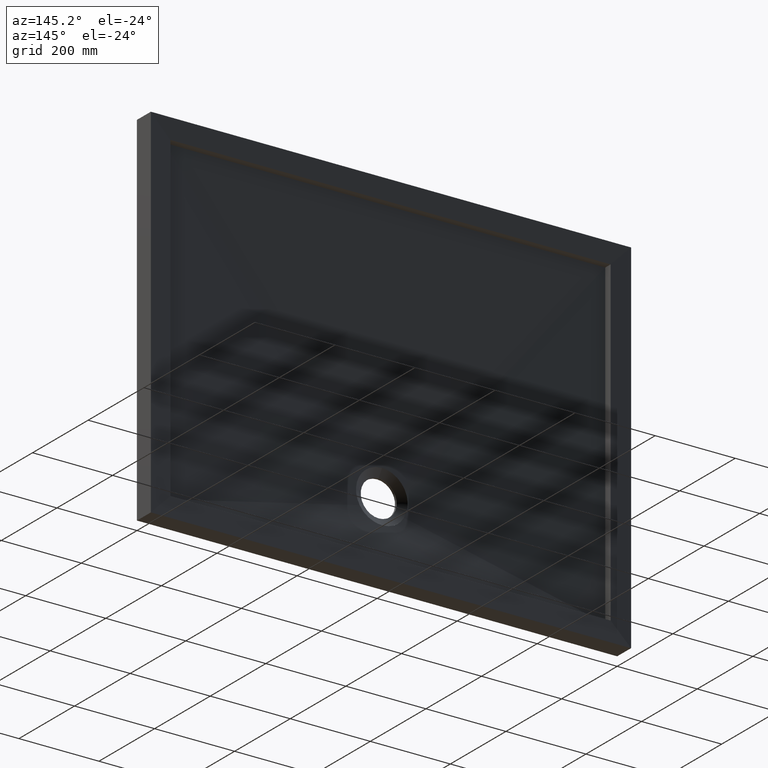
[diagram: clean part render]
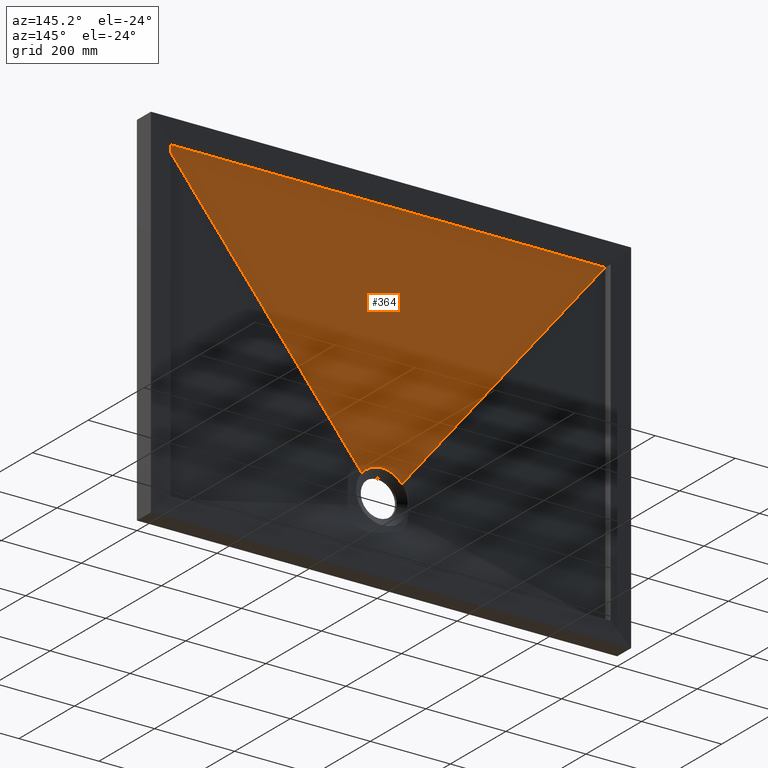
[diagram: same view with one face highlighted and labeled with its STEP entity id]
A machine part, auxiliary view. The second image highlights one B-rep face of the part: STEP entity #364.
In plain terms, the highlighted face is a freeform B-spline surface patch.
Its self-contained STEP definition (entity closure, byte-faithful):
#3 = CARTESIAN_POINT ( 'NONE',  ( 527.0833333333332600, 29.00000000000000000, 399.9999999999999400 ) ) ;
#8 = VERTEX_POINT ( 'NONE', #698 ) ;
#11 = CARTESIAN_POINT ( 'NONE',  ( 458.3333333333329200, 29.00000000000000000, 399.9999999999999400 ) ) ;
#13 = VERTEX_POINT ( 'NONE', #29 ) ;
#14 = CARTESIAN_POINT ( 'NONE',  ( 550.0000000000000000, 29.00000000000000000, 399.9999999999999400 ) ) ;
#15 = CARTESIAN_POINT ( 'NONE',  ( 91.66666666666574800, 28.99999999999999600, 399.9999999999998900 ) ) ;
#17 = CARTESIAN_POINT ( 'NONE',  ( -10.71637495685289400, 16.99999999999999600, -200.0931379184680200 ) ) ;
#18 = CARTESIAN_POINT ( 'NONE',  ( -28.74509755400799800, 17.24935912286239400, -192.2645614809004500 ) ) ;
#29 = CARTESIAN_POINT ( 'NONE',  ( -49.97414197186390800, 17.20588167449278000, -209.3659679230751200 ) ) ;
#32 = B_SPLINE_SURFACE_WITH_KNOTS ( 'NONE', 3, 1, ( 
 ( #155, #736 ),
 ( #3, #451 ),
 ( #328, #762 ),
 ( #11, #666 ),
 ( #136, #672 ),
 ( #778, #434 ),
 ( #125, #771 ),
 ( #319, #891 ),
 ( #835, #978 ),
 ( #991, #994 ),
 ( #1011, #291 ),
 ( #171, #638 ),
 ( #774, #731 ),
 ( #359, #956 ),
 ( #15, #543 ),
 ( #122, #167 ),
 ( #67, #1048 ),
 ( #1037, #954 ),
 ( #681, #164 ),
 ( #766, #1047 ),
 ( #682, #17 ),
 ( #239, #272 ),
 ( #711, #857 ),
 ( #629, #277 ),
 ( #795, #858 ),
 ( #869, #871 ),
 ( #894, #895 ),
 ( #900, #921 ),
 ( #930, #931 ),
 ( #813, #839 ),
 ( #831, #904 ),
 ( #350, #436 ),
 ( #1018, #819 ),
 ( #897, #407 ) ),
 .UNSPECIFIED., .F., .F., .F.,
 ( 4, 2, 2, 2, 2, 2, 2, 2, 2, 2, 2, 2, 2, 2, 2, 2, 4 ),
 ( 2, 2 ),
 ( 0.0000000000000000000, 0.06249999999999997200, 0.1249999999999999400, 0.1874999999999999200, 0.2499999999999998900, 0.3124999999999998900, 0.3749999999999998300, 0.4374999999999997800, 0.5000000000000000000, 0.5624999999999997800, 0.6249999999999997800, 0.6874999999999996700, 0.7499999999999996700, 0.8124999999999997800, 0.8749999999999997800, 0.9374999999999998900, 1.000000000000000000 ),
 ( 0.0000000000000000000, 1.000000000000000000 ),
 .UNSPECIFIED. ) ;
#34 = CARTESIAN_POINT ( 'NONE',  ( 49.97414197186400000, 17.20588167449277600, -209.3659679230752000 ) ) ;
#35 = CARTESIAN_POINT ( 'NONE',  ( -9.479265876766813600, 17.26855272555655700, -186.1712523424320400 ) ) ;
#39 = CARTESIAN_POINT ( 'NONE',  ( -183.3333333333332300, 28.99999999999991500, 399.9999999999999400 ) ) ;
#47 = CARTESIAN_POINT ( 'NONE',  ( 10.11580810493795300, 17.26819723771773200, -186.2780853966670200 ) ) ;
#67 = CARTESIAN_POINT ( 'NONE',  ( 22.91666666666557400, 29.00000000000000000, 399.9999999999998300 ) ) ;
#105 = EDGE_CURVE ( 'NONE', #8, #701, #634, .T. ) ;
#122 = CARTESIAN_POINT ( 'NONE',  ( 45.83333333333232700, 28.99999999999999600, 399.9999999999998900 ) ) ;
#125 = CARTESIAN_POINT ( 'NONE',  ( 366.6666666666660600, 28.99999999999999600, 399.9999999999999400 ) ) ;
#130 = CARTESIAN_POINT ( 'NONE',  ( 1.308533197277669000E-011, 17.27088643648059500, -185.4782520456767300 ) ) ;
#132 = CARTESIAN_POINT ( 'NONE',  ( -549.9999999999997700, 28.99999999999991500, 399.9999999999998300 ) ) ;
#136 = CARTESIAN_POINT ( 'NONE',  ( 435.4166666666661700, 28.99999999999999600, 399.9999999999999400 ) ) ;
#139 = CARTESIAN_POINT ( 'NONE',  ( -13.01912884585453700, 17.26645738684763000, -186.8017699432756400 ) ) ;
#149 = CARTESIAN_POINT ( 'NONE',  ( 41.64220630097260300, 17.22604673988906000, -200.7597484680775300 ) ) ;
#150 = EDGE_LOOP ( 'NONE', ( #750, #184, #671, #707, #287 ) ) ;
#151 = CARTESIAN_POINT ( 'NONE',  ( -46.85455444333030100, 17.21402276256696600, -205.7205750830067600 ) ) ;
#155 = CARTESIAN_POINT ( 'NONE',  ( 550.0000000000000000, 29.00000000000000000, 399.9999999999999400 ) ) ;
#156 = CARTESIAN_POINT ( 'NONE',  ( -41.69140537829583300, 17.22594107165013000, -200.8014092277519500 ) ) ;
#164 = CARTESIAN_POINT ( 'NONE',  ( -4.328338544971771300, 17.00000000000000000, -199.1383096882124400 ) ) ;
#165 = EDGE_CURVE ( 'NONE', #913, #13, #254, .T. ) ;
#167 = CARTESIAN_POINT ( 'NONE',  ( 4.328338544971991600, 16.99999999999999600, -199.1383096882124200 ) ) ;
#169 = CARTESIAN_POINT ( 'NONE',  ( 4.755102677040433400, 17.27044059797810500, -185.6096712859689100 ) ) ;
#171 = CARTESIAN_POINT ( 'NONE',  ( 183.3333333333324300, 28.99999999999999600, 399.9999999999998900 ) ) ;
#184 = ORIENTED_EDGE ( 'NONE', *, *, #165, .F. ) ;
#198 = CARTESIAN_POINT ( 'NONE',  ( -2.377902013855495200, 17.27088643648059800, -185.4782520456763000 ) ) ;
#201 = LINE ( 'NONE', #345, #401 ) ;
#208 = CARTESIAN_POINT ( 'NONE',  ( 13.05198255440064900, 17.26643399123459900, -186.8088639105866900 ) ) ;
#239 = CARTESIAN_POINT ( 'NONE',  ( -160.4166666666673700, 28.99999999999999600, 399.9999999999997700 ) ) ;
#240 = CARTESIAN_POINT ( 'NONE',  ( 25.50098702321349400, 17.25400128221974700, -190.7147068977659500 ) ) ;
#254 = LINE ( 'NONE', #848, #573 ) ;
#266 = CARTESIAN_POINT ( 'NONE',  ( 48.43652530376482400, 17.20996178663450800, -207.5170979754244300 ) ) ;
#272 = CARTESIAN_POINT ( 'NONE',  ( -14.83989249147562400, 16.99999999999999600, -201.1603320457400300 ) ) ;
#277 = CARTESIAN_POINT ( 'NONE',  ( -20.73369788839070800, 17.00000000000001100, -203.3580255928997400 ) ) ;
#284 = CARTESIAN_POINT ( 'NONE',  ( 11.88329816599599000, 17.26720206336586500, -186.5772284193081700 ) ) ;
#287 = ORIENTED_EDGE ( 'NONE', *, *, #105, .F. ) ;
#291 = CARTESIAN_POINT ( 'NONE',  ( 20.73369788839092800, 17.00000000000000400, -203.3580255928996500 ) ) ;
#293 = CARTESIAN_POINT ( 'NONE',  ( 18.81011411466350600, 17.26172290997689600, -188.2519243660882200 ) ) ;
#304 = CARTESIAN_POINT ( 'NONE',  ( 23.29581390036876000, 17.25680004765063600, -189.8098818146839300 ) ) ;
#306 = CARTESIAN_POINT ( 'NONE',  ( -16.53957020356080000, 17.26383226843792000, -187.6003708646430000 ) ) ;
#319 = CARTESIAN_POINT ( 'NONE',  ( 320.8333333333326300, 28.99999999999999600, 399.9999999999998900 ) ) ;
#326 = CARTESIAN_POINT ( 'NONE',  ( 43.42904343714401700, 17.22210454831827100, -202.3362233863141700 ) ) ;
#328 = CARTESIAN_POINT ( 'NONE',  ( 504.1666666666664000, 29.00000000000000000, 399.9999999999999400 ) ) ;
#329 = CARTESIAN_POINT ( 'NONE',  ( 183.3333333333334600, 28.99999999999991500, 399.9999999999999400 ) ) ;
#345 = CARTESIAN_POINT ( 'NONE',  ( 295.6227701497314200, 23.00000000000000000, 89.99837829071368800 ) ) ;
#350 = CARTESIAN_POINT ( 'NONE',  ( -504.1666666666666300, 28.99999999999999600, 399.9999999999997700 ) ) ;
#359 = CARTESIAN_POINT ( 'NONE',  ( 114.5833333333324200, 28.99999999999999600, 399.9999999999998900 ) ) ;
#360 = CARTESIAN_POINT ( 'NONE',  ( 7.738809808238187300, 17.26931446588669100, -185.9439619672132300 ) ) ;
#364 = ADVANCED_FACE ( 'NONE', ( #903 ), #32, .F. ) ;
#365 = CARTESIAN_POINT ( 'NONE',  ( -43.47049953714609700, 17.22200950406750400, -202.3752690799245800 ) ) ;
#401 = VECTOR ( 'NONE', #585, 1000.000000000000000 ) ;
#407 = CARTESIAN_POINT ( 'NONE',  ( -41.24554029946264000, 17.00000000000000000, -220.0032434185725900 ) ) ;
#414 = CARTESIAN_POINT ( 'NONE',  ( 35.97381285597575800, 17.23738743563143700, -196.4545841741629000 ) ) ;
#434 = CARTESIAN_POINT ( 'NONE',  ( 32.58897540191802000, 17.00000000000000400, -210.7249962300863000 ) ) ;
#436 = CARTESIAN_POINT ( 'NONE',  ( -39.12739289966396000, 17.00000000000000700, -217.2386246830978100 ) ) ;
#441 = CARTESIAN_POINT ( 'NONE',  ( -31.90342971921919400, 17.24441976254814100, -193.9576633006189200 ) ) ;
#442 = EDGE_CURVE ( 'NONE', #846, #701, #201, .T. ) ;
#446 = CARTESIAN_POINT ( 'NONE',  ( -29.80627085702969500, 17.24775397077884900, -192.8081886930395100 ) ) ;
#451 = CARTESIAN_POINT ( 'NONE',  ( 40.23472948865203600, 17.00000000000000000, -218.6133785537077500 ) ) ;
#455 = CARTESIAN_POINT ( 'NONE',  ( 49.21792610277045600, 17.20792244962978400, -208.4303259009961900 ) ) ;
#489 = CARTESIAN_POINT ( 'NONE',  ( 9.524232781394728100, 17.26850289120658000, -186.1864274016765300 ) ) ;
#496 = EDGE_CURVE ( 'NONE', #13, #8, #905, .T. ) ;
#498 = CARTESIAN_POINT ( 'NONE',  ( 45.99015019378266800, 17.21606421814891500, -204.8651227935335700 ) ) ;
#521 = CARTESIAN_POINT ( 'NONE',  ( 49.97414197186400000, 17.20588167449277600, -209.3659679230752000 ) ) ;
#543 = CARTESIAN_POINT ( 'NONE',  ( 8.604488429612132400, 17.00000000000000000, -199.6849045037500600 ) ) ;
#554 = CARTESIAN_POINT ( 'NONE',  ( -8.298021701742705100, 17.26910503703015800, -186.0061169859500300 ) ) ;
#572 = CARTESIAN_POINT ( 'NONE',  ( -549.9999999999997700, 28.99999999999991500, 399.9999999999998300 ) ) ;
#573 = VECTOR ( 'NONE', #800, 1000.000000000000000 ) ;
#585 = DIRECTION ( 'NONE',  ( -0.6342708425847947100, -0.01496055703471900100, -0.7729661570728600900 ) ) ;
#587 = CARTESIAN_POINT ( 'NONE',  ( -23.32762546981613000, 17.25676185936708500, -189.8221195568587200 ) ) ;
#592 = CARTESIAN_POINT ( 'NONE',  ( 30.34565741263827500, 17.24689680394788400, -193.1036541951341400 ) ) ;
#629 = CARTESIAN_POINT ( 'NONE',  ( -229.1666666666672000, 28.99999999999999600, 399.9999999999997700 ) ) ;
#634 = B_SPLINE_CURVE_WITH_KNOTS ( 'NONE', 3,
 ( #648, #776, #169, #360, #790, #489, #47, #284, #208, #706, #293, #304, #240, #923, #1041, #1028, #592, #868, #984, #414, #705, #149, #326, #498, #792, #266, #455, #521 ),
 .UNSPECIFIED., .F., .F.,
 ( 4, 2, 2, 2, 2, 2, 2, 2, 2, 2, 2, 2, 2, 4 ),
 ( 0.05700798991850635600, 0.06412374774518135600, 0.06590268720185010800, 0.06768162665851885900, 0.07123950557185637600, 0.07835526339853138300, 0.08547102122520640300, 0.08724996068187515500, 0.08902890013854389300, 0.09258677905188142400, 0.09970253687855645800, 0.1068182947052314900, 0.1103761736185690500, 0.1139340525319066000 ),
 .UNSPECIFIED. ) ;
#638 = CARTESIAN_POINT ( 'NONE',  ( 16.85142588641620500, 17.00000000000000400, -201.8192003977280800 ) ) ;
#641 = CARTESIAN_POINT ( 'NONE',  ( -18.83523870476782100, 17.26169857201121600, -188.2594764642424000 ) ) ;
#648 = CARTESIAN_POINT ( 'NONE',  ( 1.308533197277669000E-011, 17.27088643648059500, -185.4782520456767300 ) ) ;
#666 = CARTESIAN_POINT ( 'NONE',  ( 36.71241751153949200, 17.00000000000000000, -214.5534347469599100 ) ) ;
#670 = CARTESIAN_POINT ( 'NONE',  ( -49.97414197186390800, 17.20588167449278000, -209.3659679230751200 ) ) ;
#671 = ORIENTED_EDGE ( 'NONE', *, *, #1029, .F. ) ;
#672 = CARTESIAN_POINT ( 'NONE',  ( 35.40471239405092500, 17.00000000000000400, -213.2430471996372900 ) ) ;
#679 = CARTESIAN_POINT ( 'NONE',  ( -11.83861441664453400, 17.26723002409676900, -186.5688002265456500 ) ) ;
#681 = CARTESIAN_POINT ( 'NONE',  ( -45.83333333333432300, 29.00000000000000000, 399.9999999999998900 ) ) ;
#682 = CARTESIAN_POINT ( 'NONE',  ( -114.5833333333341800, 28.99999999999999600, 399.9999999999998300 ) ) ;
#691 = CARTESIAN_POINT ( 'NONE',  ( -36.00591176405897900, 17.23733064565292100, -196.4749386924746100 ) ) ;
#698 = CARTESIAN_POINT ( 'NONE',  ( 1.308533197277669000E-011, 17.27088643648059500, -185.4782520456767300 ) ) ;
#701 = VERTEX_POINT ( 'NONE', #34 ) ;
#705 = CARTESIAN_POINT ( 'NONE',  ( 37.91459878905596500, 17.23368966405640300, -197.8189181469090000 ) ) ;
#706 = CARTESIAN_POINT ( 'NONE',  ( 16.52957606586819800, 17.26383748873981700, -187.5988300016432800 ) ) ;
#707 = ORIENTED_EDGE ( 'NONE', *, *, #442, .T. ) ;
#711 = CARTESIAN_POINT ( 'NONE',  ( -183.3333333333339700, 28.99999999999999600, 399.9999999999997700 ) ) ;
#731 = CARTESIAN_POINT ( 'NONE',  ( 14.83989249147584600, 16.99999999999999600, -201.1603320457400900 ) ) ;
#736 = CARTESIAN_POINT ( 'NONE',  ( 41.24554029946286000, 17.00000000000000000, -220.0032434185725900 ) ) ;
#750 = ORIENTED_EDGE ( 'NONE', *, *, #496, .F. ) ;
#751 = CARTESIAN_POINT ( 'NONE',  ( -4.749651902815630300, 17.27043933324653900, -185.6100744589150200 ) ) ;
#762 = CARTESIAN_POINT ( 'NONE',  ( 39.12739289966417300, 17.00000000000000700, -217.2386246830978100 ) ) ;
#766 = CARTESIAN_POINT ( 'NONE',  ( -91.66666666666753800, 28.99999999999999600, 399.9999999999998300 ) ) ;
#771 = CARTESIAN_POINT ( 'NONE',  ( 31.08088943543345200, 17.00000000000000000, -209.5174096379093100 ) ) ;
#774 = CARTESIAN_POINT ( 'NONE',  ( 160.4166666666657800, 28.99999999999999600, 399.9999999999998900 ) ) ;
#776 = CARTESIAN_POINT ( 'NONE',  ( 2.374484684063844500, 17.27088643648059500, -185.4782520456772100 ) ) ;
#778 = CARTESIAN_POINT ( 'NONE',  ( 389.5833333333328000, 28.99999999999999600, 399.9999999999999400 ) ) ;
#790 = CARTESIAN_POINT ( 'NONE',  ( 8.336201833353658900, 17.26906127915454200, -186.0194123580552600 ) ) ;
#792 = CARTESIAN_POINT ( 'NONE',  ( 46.82350974173532200, 17.21403062954545500, -205.7353315572819400 ) ) ;
#795 = CARTESIAN_POINT ( 'NONE',  ( -252.0833333333338300, 28.99999999999999600, 399.9999999999997700 ) ) ;
#798 = CARTESIAN_POINT ( 'NONE',  ( -32.94059508990726200, 17.24268753882971700, -194.5642493223091400 ) ) ;
#800 = DIRECTION ( 'NONE',  ( 0.6342708425847947100, -0.01496055703471900100, -0.7729661570728600900 ) ) ;
#813 = CARTESIAN_POINT ( 'NONE',  ( -435.4166666666668000, 28.99999999999999600, 399.9999999999997700 ) ) ;
#819 = CARTESIAN_POINT ( 'NONE',  ( -40.23472948865183000, 17.00000000000000400, -218.6133785537077800 ) ) ;
#831 = CARTESIAN_POINT ( 'NONE',  ( -458.3333333333334300, 28.99999999999999600, 399.9999999999997700 ) ) ;
#835 = CARTESIAN_POINT ( 'NONE',  ( 297.9166666666659500, 28.99999999999999600, 399.9999999999998900 ) ) ;
#839 = CARTESIAN_POINT ( 'NONE',  ( -35.40471239405070500, 17.00000000000000700, -213.2430471996373500 ) ) ;
#846 = VERTEX_POINT ( 'NONE', #854 ) ;
#848 = CARTESIAN_POINT ( 'NONE',  ( -295.6227701497312000, 23.00000000000000000, 89.99837829071361700 ) ) ;
#854 = CARTESIAN_POINT ( 'NONE',  ( 550.0000000000000000, 29.00000000000000000, 399.9999999999999400 ) ) ;
#857 = CARTESIAN_POINT ( 'NONE',  ( -16.85142588641598800, 17.00000000000000000, -201.8192003977280500 ) ) ;
#858 = CARTESIAN_POINT ( 'NONE',  ( -22.60438234691113000, 17.00000000000000000, -204.2378678760107700 ) ) ;
#861 = CARTESIAN_POINT ( 'NONE',  ( -48.45953762623555100, 17.20996908791175500, -207.4919957803166700 ) ) ;
#868 = CARTESIAN_POINT ( 'NONE',  ( 31.91800340505389500, 17.24439580106355800, -193.9660147657899100 ) ) ;
#869 = CARTESIAN_POINT ( 'NONE',  ( -297.9166666666671400, 28.99999999999999600, 399.9999999999997700 ) ) ;
#871 = CARTESIAN_POINT ( 'NONE',  ( -26.17432800528031200, 17.00000000000000400, -206.1817915554413500 ) ) ;
#891 = CARTESIAN_POINT ( 'NONE',  ( 27.87358003215186000, 16.99999999999999600, -207.2457563894097300 ) ) ;
#894 = CARTESIAN_POINT ( 'NONE',  ( -320.8333333333338300, 28.99999999999999600, 399.9999999999997700 ) ) ;
#895 = CARTESIAN_POINT ( 'NONE',  ( -27.87358003215163600, 17.00000000000000400, -207.2457563894098200 ) ) ;
#897 = CARTESIAN_POINT ( 'NONE',  ( -549.9999999999997700, 29.00000000000000000, 399.9999999999998300 ) ) ;
#900 = CARTESIAN_POINT ( 'NONE',  ( -366.6666666666670300, 28.99999999999999600, 399.9999999999997700 ) ) ;
#903 = FACE_OUTER_BOUND ( 'NONE', #150, .T. ) ;
#904 = CARTESIAN_POINT ( 'NONE',  ( -36.71241751153927900, 17.00000000000001100, -214.5534347469600500 ) ) ;
#905 = B_SPLINE_CURVE_WITH_KNOTS ( 'NONE', 3,
 ( #670, #861, #151, #365, #156, #1035, #691, #798, #441, #446, #18, #1005, #587, #641, #306, #139, #679, #35, #554, #751, #198, #130 ),
 .UNSPECIFIED., .F., .F.,
 ( 4, 2, 2, 2, 2, 2, 2, 2, 2, 2, 4 ),
 ( 0.0000000000000000000, 0.007125998739813278900, 0.01425199747962655800, 0.02137799621943983800, 0.02494099558934647500, 0.02850399495925311600, 0.03562999369906642800, 0.04275599243887975200, 0.04631899180878640300, 0.04988199117869304700, 0.05700798991850635600 ),
 .UNSPECIFIED. ) ;
#913 = VERTEX_POINT ( 'NONE', #132 ) ;
#921 = CARTESIAN_POINT ( 'NONE',  ( -31.08088943543323200, 16.99999999999999600, -209.5174096379093700 ) ) ;
#923 = CARTESIAN_POINT ( 'NONE',  ( 28.20879513543133000, 17.25012673831833300, -192.0082648131935100 ) ) ;
#930 = CARTESIAN_POINT ( 'NONE',  ( -389.5833333333336000, 28.99999999999999600, 399.9999999999997700 ) ) ;
#931 = CARTESIAN_POINT ( 'NONE',  ( -32.58897540191781400, 17.00000000000000400, -210.7249962300863600 ) ) ;
#954 = CARTESIAN_POINT ( 'NONE',  ( -2.164204514738591500, 17.00000000000000400, -198.9999999999999100 ) ) ;
#956 = CARTESIAN_POINT ( 'NONE',  ( 10.71637495685311100, 17.00000000000000400, -200.0931379184680500 ) ) ;
#978 = CARTESIAN_POINT ( 'NONE',  ( 26.17432800528053200, 17.00000000000000000, -206.1817915554412900 ) ) ;
#984 = CARTESIAN_POINT ( 'NONE',  ( 32.94650556476042900, 17.24267686079366500, -194.5681075711900700 ) ) ;
#991 = CARTESIAN_POINT ( 'NONE',  ( 252.0833333333325500, 29.00000000000000000, 399.9999999999998900 ) ) ;
#994 = CARTESIAN_POINT ( 'NONE',  ( 22.60438234691134300, 17.00000000000000000, -204.2378678760107100 ) ) ;
#1005 = CARTESIAN_POINT ( 'NONE',  ( -25.52433923277144600, 17.25396833057868700, -190.7256681971402400 ) ) ;
#1009 = B_SPLINE_CURVE_WITH_KNOTS ( 'NONE', 3,
 ( #14, #329, #39, #572 ),
 .UNSPECIFIED., .F., .F.,
 ( 4, 4 ),
 ( 0.0000000000000000000, 1.000000000000000000 ),
 .UNSPECIFIED. ) ;
#1011 = CARTESIAN_POINT ( 'NONE',  ( 229.1666666666658300, 29.00000000000000000, 399.9999999999998900 ) ) ;
#1018 = CARTESIAN_POINT ( 'NONE',  ( -527.0833333333332600, 28.99999999999999600, 399.9999999999997700 ) ) ;
#1028 = CARTESIAN_POINT ( 'NONE',  ( 29.81660706245871100, 17.24771761084723900, -192.8230010990583300 ) ) ;
#1029 = EDGE_CURVE ( 'NONE', #846, #913, #1009, .T. ) ;
#1035 = CARTESIAN_POINT ( 'NONE',  ( -37.95910309634130900, 17.23360308813323300, -197.8512535637540300 ) ) ;
#1037 = CARTESIAN_POINT ( 'NONE',  ( -22.91666666666774800, 29.00000000000000400, 399.9999999999998900 ) ) ;
#1041 = CARTESIAN_POINT ( 'NONE',  ( 28.74851785221357000, 17.24933215953984000, -192.2754590116455200 ) ) ;
#1047 = CARTESIAN_POINT ( 'NONE',  ( -8.604488429611910400, 16.99999999999999600, -199.6849045037500000 ) ) ;
#1048 = CARTESIAN_POINT ( 'NONE',  ( 2.164204514738810000, 17.00000000000000000, -198.9999999999998600 ) ) ;